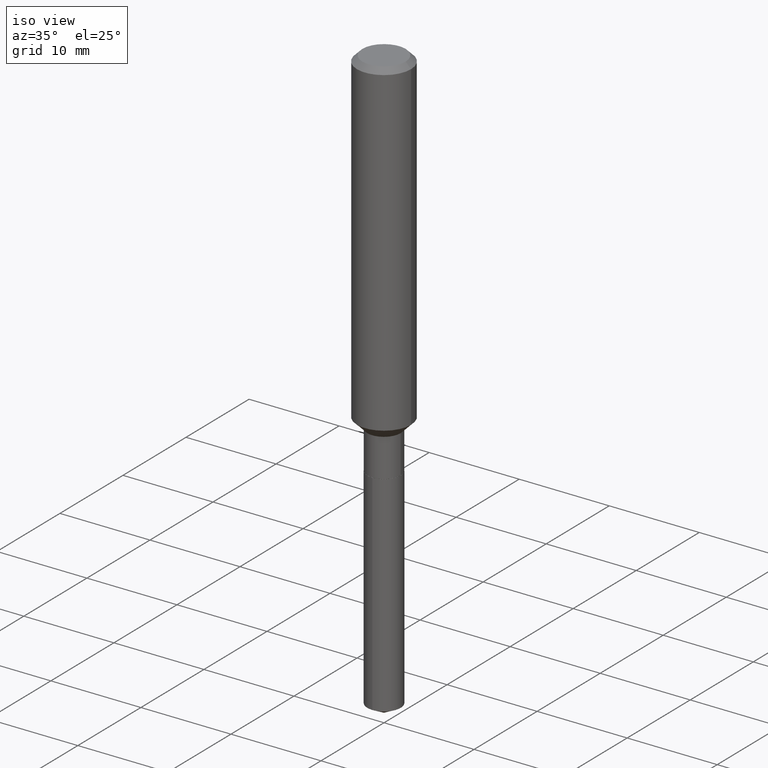
[diagram: clean part render]
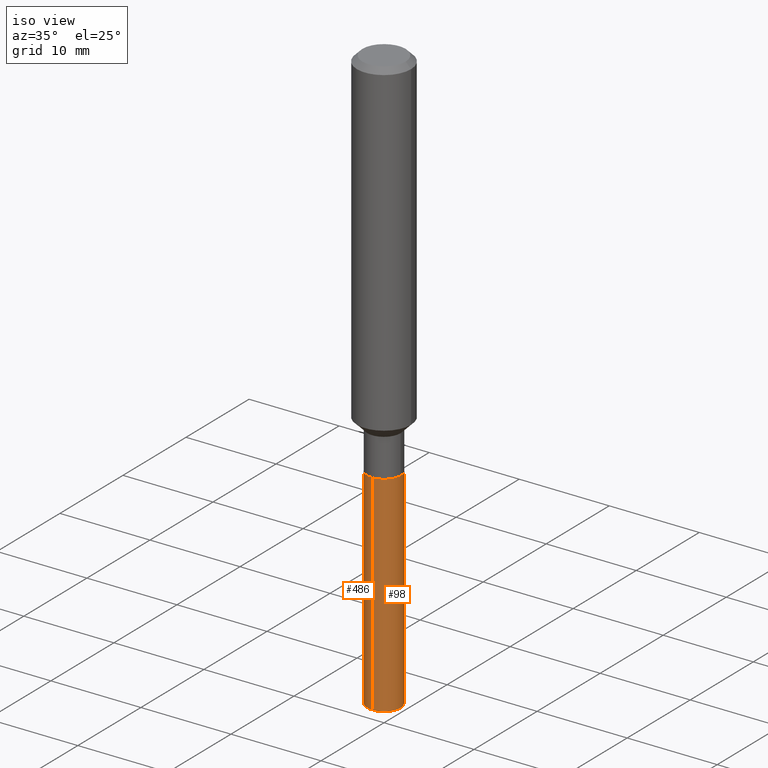
[diagram: same view with one multi-face feature highlighted, each face labeled with its STEP entity id]
A machine part, iso view. The highlighted faces form ONE feature: a constant-radius fillet chain: 2 tangent blend faces with common blend radius 1.8504 mm. The faces share edges in the B-rep.
Their STEP definitions:
[1] entity #98 (Cylinder):
#2 = CARTESIAN_POINT ( 'NONE',  ( 5.176303830012731051E-16, 0.07284999999999426656, -1.641699999999999937 ) ) ;
#13 = VECTOR ( 'NONE', #304, 39.37007874015748143 ) ;
#45 = CARTESIAN_POINT ( 'NONE',  ( 4.014726139114138019E-29, -5.731964913978790432E-15, -1.641699999999999493 ) ) ;
#47 = CARTESIAN_POINT ( 'NONE',  ( -5.087088310694042490E-16, -0.07285000000000572962, -1.641699999999999271 ) ) ;
#63 = CIRCLE ( 'NONE', #430, 0.07285000000000001197 ) ;
#65 = CARTESIAN_POINT ( 'NONE',  ( -5.087088310694042490E-16, -0.07285000000000572962, -1.641699999999999271 ) ) ;
#94 = AXIS2_PLACEMENT_3D ( 'NONE', #45, #198, #345 ) ;
#98 = ADVANCED_FACE ( 'NONE', ( #447 ), #336, .T. ) ;
#99 = VERTEX_POINT ( 'NONE', #450 ) ;
#108 = ORIENTED_EDGE ( 'NONE', *, *, #184, .T. ) ;
#112 = AXIS2_PLACEMENT_3D ( 'NONE', #334, #303, #293 ) ;
#155 = LINE ( 'NONE', #47, #13 ) ;
#178 = EDGE_LOOP ( 'NONE', ( #364, #108, #210, #323 ) ) ;
#184 = EDGE_CURVE ( 'NONE', #99, #438, #461, .T. ) ;
#198 = DIRECTION ( 'NONE',  ( -2.439545833910692576E-29, 3.499963372254795568E-15, 1.000000000000000000 ) ) ;
#207 = CARTESIAN_POINT ( 'NONE',  ( 5.176303830012957849E-16, 0.07284999999999426656, -1.641699999999999937 ) ) ;
#210 = ORIENTED_EDGE ( 'NONE', *, *, #289, .F. ) ;
#233 = EDGE_CURVE ( 'NONE', #251, #377, #155, .T. ) ;
#251 = VERTEX_POINT ( 'NONE', #264 ) ;
#259 = EDGE_CURVE ( 'NONE', #251, #99, #63, .T. ) ;
#261 = VECTOR ( 'NONE', #350, 39.37007874015748143 ) ;
#264 = CARTESIAN_POINT ( 'NONE',  ( -5.087088310693820623E-16, -0.07285000000000896314, -2.559664967903461097 ) ) ;
#289 = EDGE_CURVE ( 'NONE', #377, #438, #424, .T. ) ;
#293 = DIRECTION ( 'NONE',  ( -6.982962677686265922E-15, -1.000000000000000000, 3.749962928845934523E-15 ) ) ;
#303 = DIRECTION ( 'NONE',  ( -2.439545833910692576E-29, 3.499963372254795568E-15, 1.000000000000000000 ) ) ;
#304 = DIRECTION ( 'NONE',  ( -2.439545833910692856E-29, 3.499963372254795568E-15, 1.000000000000000000 ) ) ;
#314 = CARTESIAN_POINT ( 'NONE',  ( 6.254143752238989937E-29, -8.944808678653955332E-15, -2.559664967903461097 ) ) ;
#323 = ORIENTED_EDGE ( 'NONE', *, *, #233, .F. ) ;
#334 = CARTESIAN_POINT ( 'NONE',  ( 4.014726139114138019E-29, -5.731964913978790432E-15, -1.641699999999999493 ) ) ;
#336 = CYLINDRICAL_SURFACE ( 'NONE', #112, 0.07284999999999999809 ) ;
#345 = DIRECTION ( 'NONE',  ( -6.982962677686265922E-15, -1.000000000000000000, 3.749962928845934523E-15 ) ) ;
#348 = DIRECTION ( 'NONE',  ( -2.439545833910692576E-29, 3.499963372254795568E-15, 1.000000000000000000 ) ) ;
#350 = DIRECTION ( 'NONE',  ( -2.439545833910692856E-29, 3.499963372254795568E-15, 1.000000000000000000 ) ) ;
#364 = ORIENTED_EDGE ( 'NONE', *, *, #259, .T. ) ;
#377 = VERTEX_POINT ( 'NONE', #65 ) ;
#424 = CIRCLE ( 'NONE', #94, 0.07284999999999999809 ) ;
#430 = AXIS2_PLACEMENT_3D ( 'NONE', #314, #348, #458 ) ;
#438 = VERTEX_POINT ( 'NONE', #207 ) ;
#447 = FACE_OUTER_BOUND ( 'NONE', #178, .T. ) ;
#450 = CARTESIAN_POINT ( 'NONE',  ( 5.176303830012954891E-16, 0.07284999999999107467, -2.559664967903461097 ) ) ;
#458 = DIRECTION ( 'NONE',  ( -6.982962677686265133E-15, -1.000000000000000000, 0.000000000000000000 ) ) ;
#461 = LINE ( 'NONE', #2, #261 ) ;
[2] entity #486 (Cylinder):
#2 = CARTESIAN_POINT ( 'NONE',  ( 5.176303830012731051E-16, 0.07284999999999426656, -1.641699999999999937 ) ) ;
#8 = DIRECTION ( 'NONE',  ( -6.982962677686265922E-15, -1.000000000000000000, 3.749962928845934523E-15 ) ) ;
#12 = CARTESIAN_POINT ( 'NONE',  ( 6.254143752238989937E-29, -8.944808678653955332E-15, -2.559664967903461097 ) ) ;
#13 = VECTOR ( 'NONE', #304, 39.37007874015748143 ) ;
#14 = EDGE_LOOP ( 'NONE', ( #234, #66, #118, #146 ) ) ;
#31 = AXIS2_PLACEMENT_3D ( 'NONE', #121, #426, #8 ) ;
#47 = CARTESIAN_POINT ( 'NONE',  ( -5.087088310694042490E-16, -0.07285000000000572962, -1.641699999999999271 ) ) ;
#65 = CARTESIAN_POINT ( 'NONE',  ( -5.087088310694042490E-16, -0.07285000000000572962, -1.641699999999999271 ) ) ;
#66 = ORIENTED_EDGE ( 'NONE', *, *, #199, .T. ) ;
#69 = FACE_OUTER_BOUND ( 'NONE', #14, .T. ) ;
#99 = VERTEX_POINT ( 'NONE', #450 ) ;
#118 = ORIENTED_EDGE ( 'NONE', *, *, #233, .T. ) ;
#121 = CARTESIAN_POINT ( 'NONE',  ( 4.014726139114138019E-29, -5.731964913978790432E-15, -1.641699999999999493 ) ) ;
#146 = ORIENTED_EDGE ( 'NONE', *, *, #299, .F. ) ;
#152 = AXIS2_PLACEMENT_3D ( 'NONE', #12, #462, #266 ) ;
#155 = LINE ( 'NONE', #47, #13 ) ;
#184 = EDGE_CURVE ( 'NONE', #99, #438, #461, .T. ) ;
#185 = CIRCLE ( 'NONE', #152, 0.07285000000000001197 ) ;
#199 = EDGE_CURVE ( 'NONE', #99, #251, #185, .T. ) ;
#206 = CIRCLE ( 'NONE', #31, 0.07284999999999999809 ) ;
#207 = CARTESIAN_POINT ( 'NONE',  ( 5.176303830012957849E-16, 0.07284999999999426656, -1.641699999999999937 ) ) ;
#229 = AXIS2_PLACEMENT_3D ( 'NONE', #250, #335, #367 ) ;
#233 = EDGE_CURVE ( 'NONE', #251, #377, #155, .T. ) ;
#234 = ORIENTED_EDGE ( 'NONE', *, *, #184, .F. ) ;
#250 = CARTESIAN_POINT ( 'NONE',  ( 4.014726139114138019E-29, -5.731964913978790432E-15, -1.641699999999999493 ) ) ;
#251 = VERTEX_POINT ( 'NONE', #264 ) ;
#261 = VECTOR ( 'NONE', #350, 39.37007874015748143 ) ;
#264 = CARTESIAN_POINT ( 'NONE',  ( -5.087088310693820623E-16, -0.07285000000000896314, -2.559664967903461097 ) ) ;
#266 = DIRECTION ( 'NONE',  ( -6.982962677686265133E-15, -1.000000000000000000, 0.000000000000000000 ) ) ;
#299 = EDGE_CURVE ( 'NONE', #438, #377, #206, .T. ) ;
#304 = DIRECTION ( 'NONE',  ( -2.439545833910692856E-29, 3.499963372254795568E-15, 1.000000000000000000 ) ) ;
#335 = DIRECTION ( 'NONE',  ( -2.439545833910692576E-29, 3.499963372254795568E-15, 1.000000000000000000 ) ) ;
#350 = DIRECTION ( 'NONE',  ( -2.439545833910692856E-29, 3.499963372254795568E-15, 1.000000000000000000 ) ) ;
#367 = DIRECTION ( 'NONE',  ( -6.982962677686265922E-15, -1.000000000000000000, 3.749962928845934523E-15 ) ) ;
#377 = VERTEX_POINT ( 'NONE', #65 ) ;
#426 = DIRECTION ( 'NONE',  ( -2.439545833910692576E-29, 3.499963372254795568E-15, 1.000000000000000000 ) ) ;
#438 = VERTEX_POINT ( 'NONE', #207 ) ;
#449 = CYLINDRICAL_SURFACE ( 'NONE', #229, 0.07284999999999999809 ) ;
#450 = CARTESIAN_POINT ( 'NONE',  ( 5.176303830012954891E-16, 0.07284999999999107467, -2.559664967903461097 ) ) ;
#461 = LINE ( 'NONE', #2, #261 ) ;
#462 = DIRECTION ( 'NONE',  ( -2.439545833910692576E-29, 3.499963372254795568E-15, 1.000000000000000000 ) ) ;
#486 = ADVANCED_FACE ( 'NONE', ( #69 ), #449, .T. ) ;